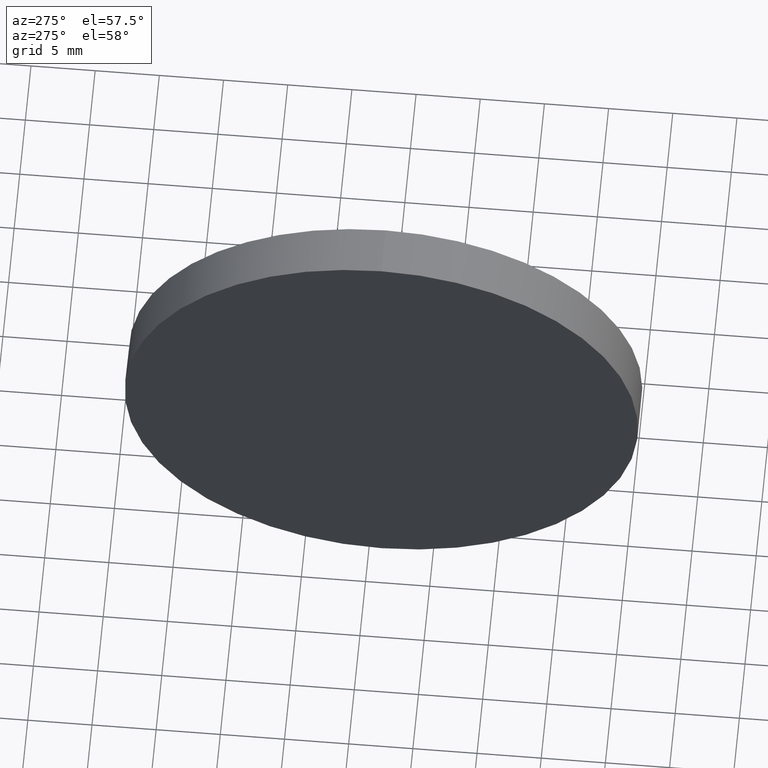
[diagram: clean part render]
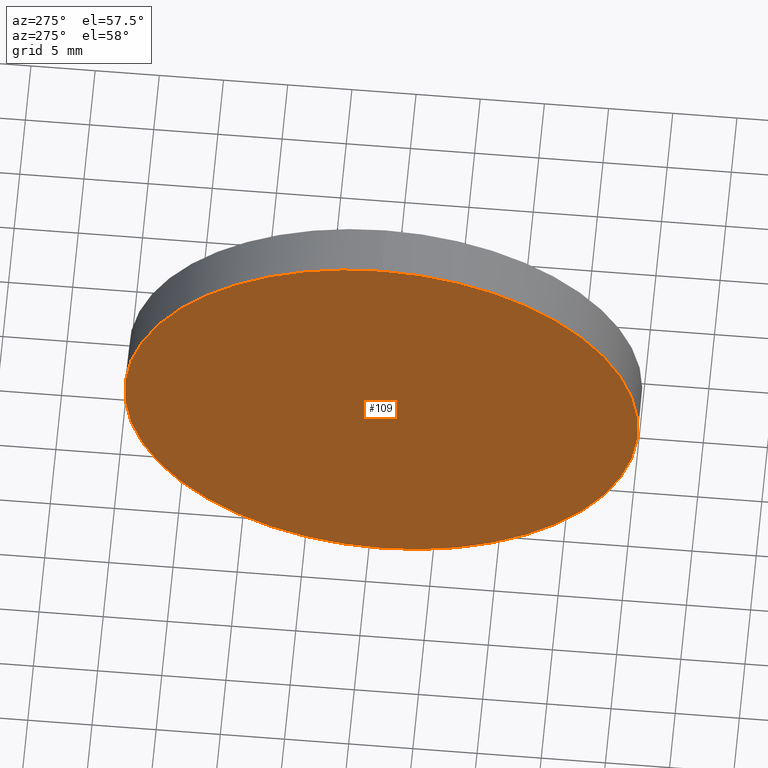
[diagram: same view with one face highlighted and labeled with its STEP entity id]
A machine part, auxiliary view. The second image highlights one B-rep face of the part: STEP entity #109.
In plain terms, the highlighted planar face has unit normal (1, 0, 0).
Its self-contained STEP definition (entity closure, byte-faithful):
#3 = DIRECTION ( 'NONE',  ( 0.0000000000000000000, 0.0000000000000000000, 1.000000000000000000 ) ) ;
#12 = ORIENTED_EDGE ( 'NONE', *, *, #149, .T. ) ;
#17 = EDGE_CURVE ( 'NONE', #32, #78, #76, .T. ) ;
#18 = CARTESIAN_POINT ( 'NONE',  ( 507.6214132344987300, 118.9984717383097600, 0.0000000000000000000 ) ) ;
#30 = FACE_OUTER_BOUND ( 'NONE', #120, .T. ) ;
#32 = VERTEX_POINT ( 'NONE', #89 ) ;
#38 = DIRECTION ( 'NONE',  ( 1.000000000000000000, 0.0000000000000000000, 0.0000000000000000000 ) ) ;
#42 = CARTESIAN_POINT ( 'NONE',  ( 507.6214132344987300, 118.9984717383097600, 0.0000000000000000000 ) ) ;
#48 = ORIENTED_EDGE ( 'NONE', *, *, #17, .T. ) ;
#76 = CIRCLE ( 'NONE', #92, 20.00000000000000400 ) ;
#78 = VERTEX_POINT ( 'NONE', #168 ) ;
#81 = CIRCLE ( 'NONE', #162, 20.00000000000000400 ) ;
#86 = AXIS2_PLACEMENT_3D ( 'NONE', #127, #38, #94 ) ;
#89 = CARTESIAN_POINT ( 'NONE',  ( 507.6214132344987300, 118.9984717383097600, -20.00000000000000400 ) ) ;
#92 = AXIS2_PLACEMENT_3D ( 'NONE', #18, #155, #3 ) ;
#94 = DIRECTION ( 'NONE',  ( 0.0000000000000000000, 0.0000000000000000000, -1.000000000000000000 ) ) ;
#97 = PLANE ( 'NONE',  #86 ) ;
#109 = ADVANCED_FACE ( 'NONE', ( #30 ), #97, .F. ) ;
#120 = EDGE_LOOP ( 'NONE', ( #12, #48 ) ) ;
#127 = CARTESIAN_POINT ( 'NONE',  ( 507.6214132344987300, 118.9984717383097600, 0.0000000000000000000 ) ) ;
#146 = DIRECTION ( 'NONE',  ( -1.000000000000000000, -0.0000000000000000000, -0.0000000000000000000 ) ) ;
#149 = EDGE_CURVE ( 'NONE', #78, #32, #81, .T. ) ;
#155 = DIRECTION ( 'NONE',  ( -1.000000000000000000, -0.0000000000000000000, -0.0000000000000000000 ) ) ;
#158 = DIRECTION ( 'NONE',  ( 0.0000000000000000000, 0.0000000000000000000, 1.000000000000000000 ) ) ;
#162 = AXIS2_PLACEMENT_3D ( 'NONE', #42, #146, #158 ) ;
#168 = CARTESIAN_POINT ( 'NONE',  ( 507.6214132344987300, 118.9984717383097600, 20.00000000000000400 ) ) ;